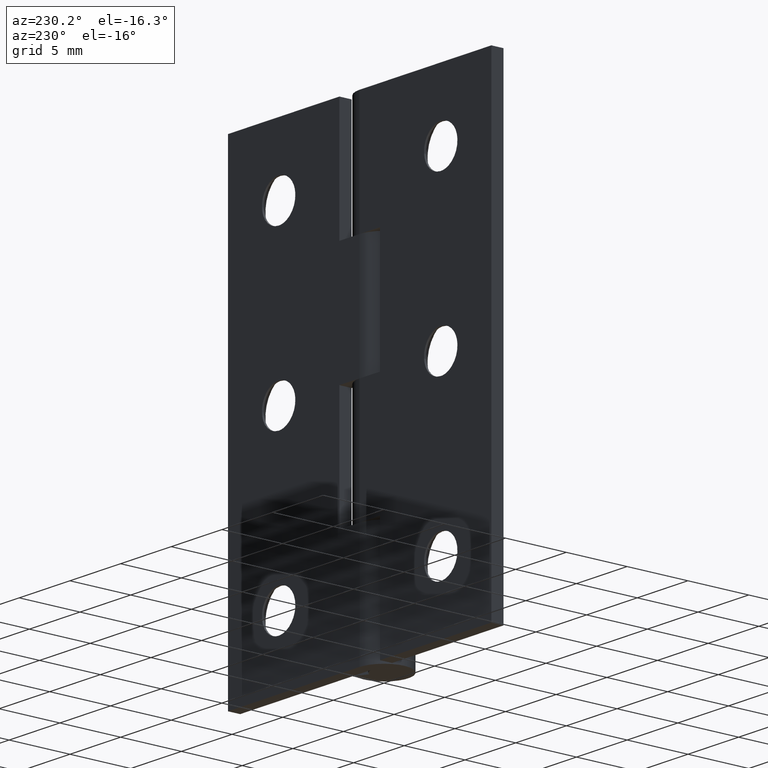
[diagram: clean part render]
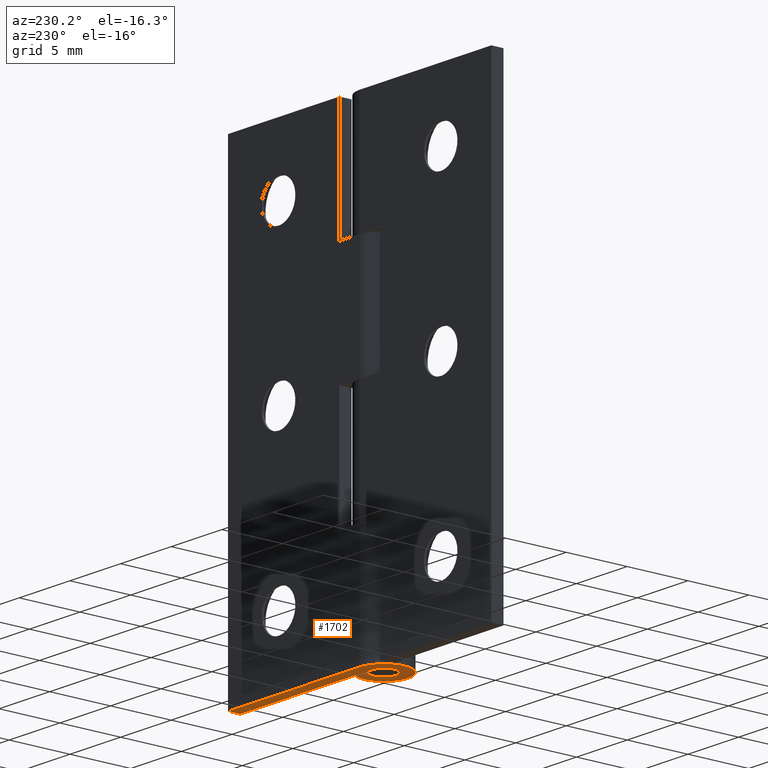
[diagram: same view with one face highlighted and labeled with its STEP entity id]
A machine part, auxiliary view. The second image highlights one B-rep face of the part: STEP entity #1702.
In plain terms, the highlighted face is a freeform B-spline surface patch.
Its self-contained STEP definition (entity closure, byte-faithful):
#1625=CARTESIAN_POINT('',(-2.749172469831237,-2.199489983953024,0.0));
#1626=CARTESIAN_POINT('',(13.749246686243181,-2.199489983953024,0.0));
#1627=CARTESIAN_POINT('',(-2.749172469831237,2.199785351288488,0.0));
#1628=CARTESIAN_POINT('',(13.749246686243181,2.199785351288488,0.0));
#1629=B_SPLINE_SURFACE_WITH_KNOTS('',1,1,((#1625,#1627),(#1626,#1628)),.UNSPECIFIED.,.F.,.F.,.U.,(2,2),(2,2),(0.0,16.498419156074419),(0.0,4.399275335241512),.UNSPECIFIED.);
#1630=CARTESIAN_POINT('',(0.879985795339902,0.475000000000000,0.0));
#1631=VERTEX_POINT('',#1630);
#1632=CARTESIAN_POINT('',(0.0,1.0,0.0));
#1633=VERTEX_POINT('',#1632);
#1634=CARTESIAN_POINT('',(0.879985795339902,0.475000000000000,0.0));
#1635=CARTESIAN_POINT('',(1.241772259107792,-0.195246208551572,0.0));
#1636=CARTESIAN_POINT('',(0.691759022314384,-0.722128420051896,0.0));
#1637=CARTESIAN_POINT('',(0.141745785520978,-1.249010631552219,0.0));
#1638=CARTESIAN_POINT('',(-0.512347538297979,-0.858778201865884,0.0));
#1639=CARTESIAN_POINT('',(-1.166440862116937,-0.468545772179548,0.0));
#1640=CARTESIAN_POINT('',(-0.964048287656247,0.265727113910226,0.0));
#1641=CARTESIAN_POINT('',(-0.761655713195557,1.0,0.0));
#1642=CARTESIAN_POINT('',(0.0,1.0,0.0));
#1650=(BOUNDED_CURVE()B_SPLINE_CURVE(2,(#1634,#1635,#1636,#1637,#1638,#1639,#1640,#1641,#1642),.UNSPECIFIED.,.F.,.U.)B_SPLINE_CURVE_WITH_KNOTS((3,2,2,2,3),(0.0,0.250000000000000,0.500000000000000,0.750000000000000,1.0),.UNSPECIFIED.)CURVE()GEOMETRIC_REPRESENTATION_ITEM()RATIONAL_B_SPLINE_CURVE((1.0,0.795527219493534,1.0,0.795527219493534,1.0,0.795527219493534,1.0,0.795527219493534,1.0))REPRESENTATION_ITEM(''));
#1651=EDGE_CURVE('',#1631,#1633,#1650,.T.);
#1652=ORIENTED_EDGE('',*,*,#1651,.F.);
#1653=CARTESIAN_POINT('',(1.759971590679805,0.950000000000000,0.0));
#1654=VERTEX_POINT('',#1653);
#1655=CARTESIAN_POINT('',(1.759971590679805,0.950000000000000,0.0));
#1656=CARTESIAN_POINT('',(0.879985795339902,0.475000000000000,0.0));
#1657=QUASI_UNIFORM_CURVE('',1,(#1655,#1656),.UNSPECIFIED.,.F.,.U.);
#1658=EDGE_CURVE('',#1654,#1631,#1657,.T.);
#1659=ORIENTED_EDGE('',*,*,#1658,.F.);
#1660=CARTESIAN_POINT('',(0.0,2.0,0.0));
#1661=VERTEX_POINT('',#1660);
#1662=CARTESIAN_POINT('',(1.759971590679804,0.950000000000000,0.0));
#1663=CARTESIAN_POINT('',(2.483544518215584,-0.390492417103144,0.0));
#1664=CARTESIAN_POINT('',(1.383518044628769,-1.444256840103792,0.0));
#1665=CARTESIAN_POINT('',(0.283491571041955,-2.498021263104437,0.0));
#1666=CARTESIAN_POINT('',(-1.024695076595959,-1.717556403731767,0.0));
#1667=CARTESIAN_POINT('',(-2.332881724233873,-0.937091544359097,0.0));
#1668=CARTESIAN_POINT('',(-1.928096575312494,0.531454227820451,0.0));
#1669=CARTESIAN_POINT('',(-1.523311426391115,2.000000000000000,0.0));
#1670=CARTESIAN_POINT('',(0.0,2.0,0.0));
#1678=(BOUNDED_CURVE()B_SPLINE_CURVE(2,(#1662,#1663,#1664,#1665,#1666,#1667,#1668,#1669,#1670),.UNSPECIFIED.,.F.,.U.)B_SPLINE_CURVE_WITH_KNOTS((3,2,2,2,3),(0.0,0.250000000000000,0.500000000000000,0.750000000000000,1.0),.UNSPECIFIED.)CURVE()GEOMETRIC_REPRESENTATION_ITEM()RATIONAL_B_SPLINE_CURVE((1.0,0.795527219493534,1.0,0.795527219493534,1.0,0.795527219493534,1.0,0.795527219493534,1.0))REPRESENTATION_ITEM(''));
#1679=EDGE_CURVE('',#1654,#1661,#1678,.T.);
#1680=ORIENTED_EDGE('',*,*,#1679,.T.);
#1681=CARTESIAN_POINT('',(13.0,2.0,0.0));
#1682=VERTEX_POINT('',#1681);
#1683=CARTESIAN_POINT('',(13.0,2.0,0.0));
#1684=CARTESIAN_POINT('',(0.0,2.0,0.0));
#1685=QUASI_UNIFORM_CURVE('',1,(#1683,#1684),.UNSPECIFIED.,.F.,.U.);
#1686=EDGE_CURVE('',#1682,#1661,#1685,.T.);
#1687=ORIENTED_EDGE('',*,*,#1686,.F.);
#1688=CARTESIAN_POINT('',(13.0,1.0,0.0));
#1689=VERTEX_POINT('',#1688);
#1690=CARTESIAN_POINT('',(13.0,1.0,0.0));
#1691=CARTESIAN_POINT('',(13.0,2.0,0.0));
#1692=QUASI_UNIFORM_CURVE('',1,(#1690,#1691),.UNSPECIFIED.,.F.,.U.);
#1693=EDGE_CURVE('',#1689,#1682,#1692,.T.);
#1694=ORIENTED_EDGE('',*,*,#1693,.F.);
#1695=CARTESIAN_POINT('',(0.0,1.0,0.0));
#1696=CARTESIAN_POINT('',(13.0,1.0,0.0));
#1697=QUASI_UNIFORM_CURVE('',1,(#1695,#1696),.UNSPECIFIED.,.F.,.U.);
#1698=EDGE_CURVE('',#1633,#1689,#1697,.T.);
#1699=ORIENTED_EDGE('',*,*,#1698,.F.);
#1700=EDGE_LOOP('',(#1652,#1659,#1680,#1687,#1694,#1699));
#1701=FACE_OUTER_BOUND('',#1700,.T.);
#1702=ADVANCED_FACE('',(#1701),#1629,.F.);